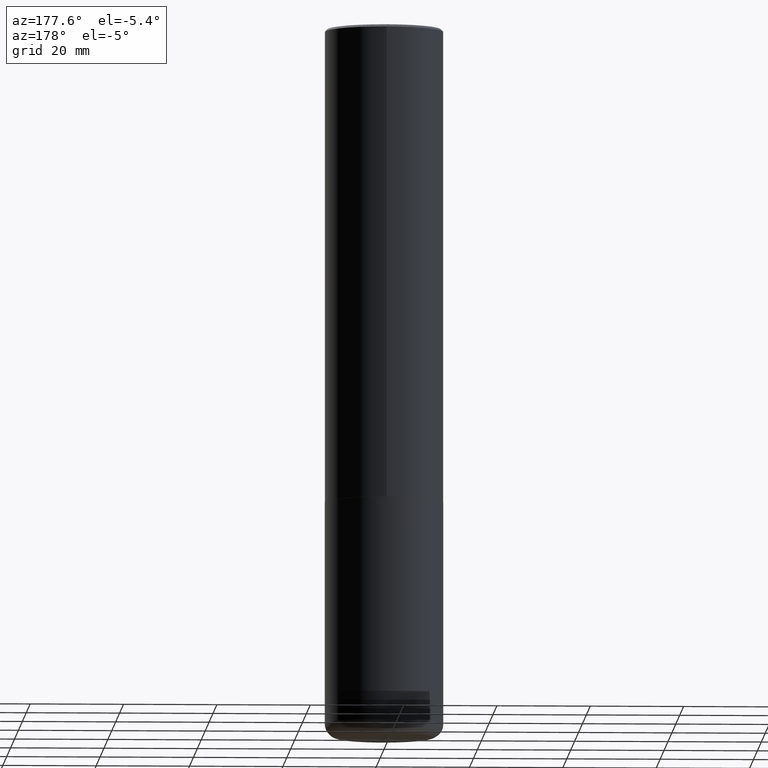
[diagram: clean part render]
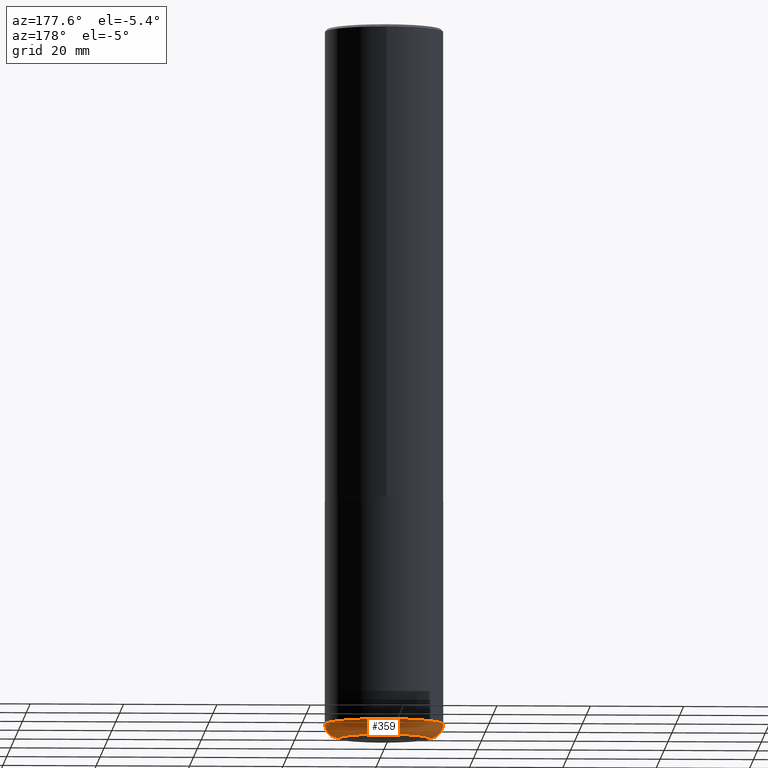
[diagram: same view with one face highlighted and labeled with its STEP entity id]
A machine part, auxiliary view. The second image highlights one B-rep face of the part: STEP entity #359.
In plain terms, the highlighted toroidal blend (fillet) surface has major radius 9.652 mm and minor (blend) radius 3.048 mm.
Its self-contained STEP definition (entity closure, byte-faithful):
#11 = DIRECTION ( 'NONE',  ( -2.445468806185136597E-29, 3.491481338843145583E-15, 1.000000000000000000 ) ) ;
#14 = DIRECTION ( 'NONE',  ( 1.000000000000000000, -6.982962677686273021E-15, 0.000000000000000000 ) ) ;
#20 = VERTEX_POINT ( 'NONE', #388 ) ;
#40 = CIRCLE ( 'NONE', #68, 0.5000000000000000000 ) ;
#42 = ORIENTED_EDGE ( 'NONE', *, *, #317, .F. ) ;
#57 = DIRECTION ( 'NONE',  ( -6.982962677686266711E-15, -1.000000000000000000, 3.491481338843145583E-15 ) ) ;
#63 = CARTESIAN_POINT ( 'NONE',  ( -0.3799999999999999489, -1.782984787650931928E-14, -5.880000000000000782 ) ) ;
#64 = VERTEX_POINT ( 'NONE', #331 ) ;
#68 = AXIS2_PLACEMENT_3D ( 'NONE', #118, #184, #306 ) ;
#84 = CARTESIAN_POINT ( 'NONE',  ( 1.467281283711082406E-28, -2.094888803305887902E-14, -6.000000000000001776 ) ) ;
#98 = CARTESIAN_POINT ( 'NONE',  ( 0.5000000000000002220, -2.402139161124082943E-14, -5.880000000000000782 ) ) ;
#118 = CARTESIAN_POINT ( 'NONE',  ( 1.437935658036860328E-28, -2.052991027239769923E-14, -5.880000000000000782 ) ) ;
#131 = EDGE_CURVE ( 'NONE', #20, #173, #232, .T. ) ;
#173 = VERTEX_POINT ( 'NONE', #260 ) ;
#181 = CIRCLE ( 'NONE', #321, 0.1200000000000004258 ) ;
#184 = DIRECTION ( 'NONE',  ( -2.445468806185136597E-29, 3.491481338843145583E-15, 1.000000000000000000 ) ) ;
#187 = DIRECTION ( 'NONE',  ( -2.445468806185136597E-29, 3.491481338843145583E-15, 1.000000000000000000 ) ) ;
#190 = DIRECTION ( 'NONE',  ( 7.105427357601001859E-15, 1.000000000000000000, -3.491481338843145583E-15 ) ) ;
#195 = TOROIDAL_SURFACE ( 'NONE', #248, 0.3799999999999999489, 0.1200000000000004674 ) ;
#199 = ORIENTED_EDGE ( 'NONE', *, *, #267, .F. ) ;
#211 = DIRECTION ( 'NONE',  ( 1.000000000000000000, -6.982962677686275388E-15, 0.000000000000000000 ) ) ;
#226 = ORIENTED_EDGE ( 'NONE', *, *, #131, .T. ) ;
#232 = CIRCLE ( 'NONE', #357, 0.3799999999999999489 ) ;
#235 = DIRECTION ( 'NONE',  ( -1.000000000000000000, 7.105427357600997914E-15, 0.000000000000000000 ) ) ;
#236 = DIRECTION ( 'NONE',  ( 1.000000000000000000, -6.982962677686265133E-15, 4.883557194083111780E-29 ) ) ;
#242 = CARTESIAN_POINT ( 'NONE',  ( 1.437935658036860328E-28, -2.052991027239769923E-14, -5.880000000000000782 ) ) ;
#248 = AXIS2_PLACEMENT_3D ( 'NONE', #242, #187, #236 ) ;
#252 = EDGE_CURVE ( 'NONE', #173, #64, #181, .T. ) ;
#257 = ORIENTED_EDGE ( 'NONE', *, *, #252, .T. ) ;
#260 = CARTESIAN_POINT ( 'NONE',  ( -0.3799999999999999489, -1.761301111538384868E-14, -6.000000000000001776 ) ) ;
#267 = EDGE_CURVE ( 'NONE', #20, #411, #301, .T. ) ;
#268 = CARTESIAN_POINT ( 'NONE',  ( 0.3799999999999999489, -2.318343608991847616E-14, -5.880000000000000782 ) ) ;
#271 = FACE_OUTER_BOUND ( 'NONE', #401, .T. ) ;
#295 = AXIS2_PLACEMENT_3D ( 'NONE', #268, #57, #211 ) ;
#301 = CIRCLE ( 'NONE', #295, 0.1200000000000004258 ) ;
#306 = DIRECTION ( 'NONE',  ( 1.000000000000000000, -6.982962677686262766E-15, 0.000000000000000000 ) ) ;
#317 = EDGE_CURVE ( 'NONE', #411, #64, #40, .T. ) ;
#321 = AXIS2_PLACEMENT_3D ( 'NONE', #63, #190, #235 ) ;
#331 = CARTESIAN_POINT ( 'NONE',  ( -0.5000000000000002220, -1.697719659359719514E-14, -5.880000000000000782 ) ) ;
#357 = AXIS2_PLACEMENT_3D ( 'NONE', #84, #11, #14 ) ;
#359 = ADVANCED_FACE ( 'NONE', ( #271 ), #195, .T. ) ;
#388 = CARTESIAN_POINT ( 'NONE',  ( 0.3799999999999999489, -2.360241385057966226E-14, -6.000000000000001776 ) ) ;
#401 = EDGE_LOOP ( 'NONE', ( #226, #257, #42, #199 ) ) ;
#411 = VERTEX_POINT ( 'NONE', #98 ) ;